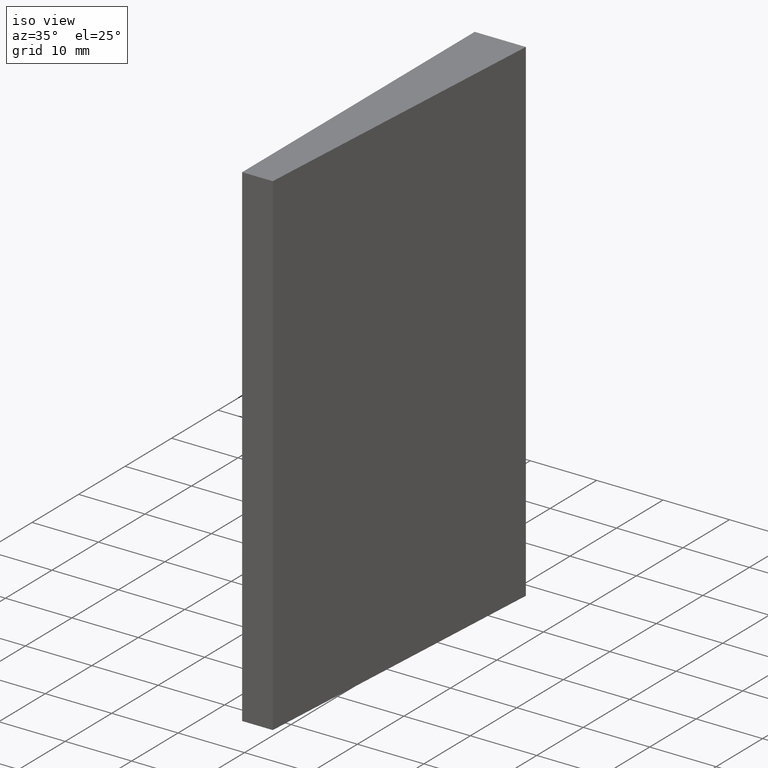
[diagram: clean part render]
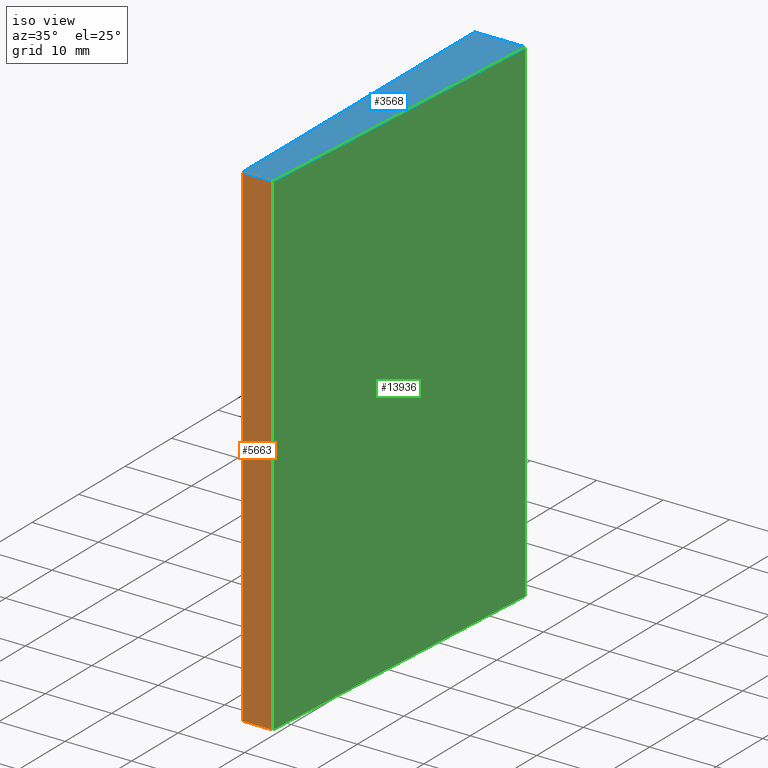
[diagram: same view with three faces highlighted in distinct colors, each labeled with its STEP entity id]
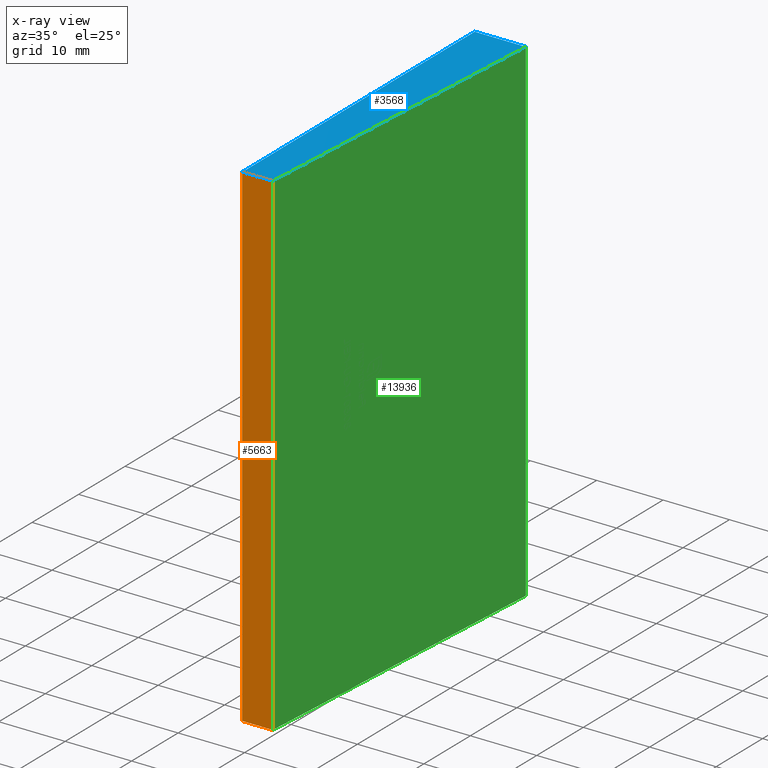
[diagram: x-ray of the same camera — body ghosted, the three highlighted faces saturated]
A machine part, iso view with three faces highlighted in distinct colors.
The next image is the same camera in x-ray (body ghosted, the three faces saturated) — at least one of them is partly hidden behind the body in this view.
Their STEP definitions:

[orange] entity #5663 — the highlighted planar face has unit normal (0, 1, -0).
#792 = DIRECTION ( 'NONE',  ( 0.000000000000000000, 0.000000000000000000, 1.000000000000000000 ) ) ;
#1117 = CARTESIAN_POINT ( 'NONE',  ( -3.849999999999992539, -25.00000000000000000, 37.35000000000000142 ) ) ;
#1541 = VERTEX_POINT ( 'NONE', #14502 ) ;
#1980 = CARTESIAN_POINT ( 'NONE',  ( -3.849999999999992539, -25.00000000000000000, 37.35000000000000142 ) ) ;
#2612 = FACE_OUTER_BOUND ( 'NONE', #4120, .T. ) ;
#3157 = EDGE_CURVE ( 'NONE', #10085, #9326, #4837, .T. ) ;
#3208 = DIRECTION ( 'NONE',  ( 0.000000000000000000, 1.000000000000000000, -0.000000000000000000 ) ) ;
#4119 = CARTESIAN_POINT ( 'NONE',  ( 0.7500000000000072164, -25.00000000000000000, -37.35000000000000142 ) ) ;
#4120 = EDGE_LOOP ( 'NONE', ( #5336, #14448, #8562, #8525 ) ) ;
#4466 = VECTOR ( 'NONE', #12809, 1000.000000000000000 ) ;
#4837 = LINE ( 'NONE', #4119, #4466 ) ;
#5336 = ORIENTED_EDGE ( 'NONE', *, *, #3157, .T. ) ;
#5550 = CARTESIAN_POINT ( 'NONE',  ( 0.7500000000000072164, -25.00000000000000000, 37.35000000000000142 ) ) ;
#5663 = ADVANCED_FACE ( 'NONE', ( #2612 ), #13007, .F. ) ;
#5723 = EDGE_CURVE ( 'NONE', #5782, #1541, #9683, .T. ) ;
#5782 = VERTEX_POINT ( 'NONE', #1117 ) ;
#6555 = EDGE_CURVE ( 'NONE', #5782, #10085, #15318, .T. ) ;
#6948 = CARTESIAN_POINT ( 'NONE',  ( 0.7500000000000072164, -25.00000000000000000, -37.35000000000000142 ) ) ;
#8525 = ORIENTED_EDGE ( 'NONE', *, *, #6555, .T. ) ;
#8562 = ORIENTED_EDGE ( 'NONE', *, *, #5723, .F. ) ;
#9009 = DIRECTION ( 'NONE',  ( -0.000000000000000000, -0.000000000000000000, -1.000000000000000000 ) ) ;
#9243 = CARTESIAN_POINT ( 'NONE',  ( 0.7500000000000072164, -25.00000000000000000, 37.35000000000000142 ) ) ;
#9326 = VERTEX_POINT ( 'NONE', #6948 ) ;
#9683 = LINE ( 'NONE', #9243, #14860 ) ;
#9796 = VECTOR ( 'NONE', #9009, 1000.000000000000000 ) ;
#10085 = VERTEX_POINT ( 'NONE', #10380 ) ;
#10380 = CARTESIAN_POINT ( 'NONE',  ( -3.849999999999992539, -25.00000000000000000, -37.35000000000000142 ) ) ;
#10723 = DIRECTION ( 'NONE',  ( -0.000000000000000000, -0.000000000000000000, -1.000000000000000000 ) ) ;
#12098 = AXIS2_PLACEMENT_3D ( 'NONE', #5550, #3208, #792 ) ;
#12559 = CARTESIAN_POINT ( 'NONE',  ( 0.7500000000000072164, -25.00000000000000000, 37.35000000000000142 ) ) ;
#12809 = DIRECTION ( 'NONE',  ( 1.000000000000000000, -0.000000000000000000, -0.000000000000000000 ) ) ;
#13007 = PLANE ( 'NONE',  #12098 ) ;
#13221 = VECTOR ( 'NONE', #10723, 1000.000000000000000 ) ;
#13265 = LINE ( 'NONE', #12559, #9796 ) ;
#14271 = DIRECTION ( 'NONE',  ( 1.000000000000000000, -0.000000000000000000, -0.000000000000000000 ) ) ;
#14448 = ORIENTED_EDGE ( 'NONE', *, *, #15852, .F. ) ;
#14502 = CARTESIAN_POINT ( 'NONE',  ( 0.7500000000000072164, -25.00000000000000000, 37.35000000000000142 ) ) ;
#14860 = VECTOR ( 'NONE', #14271, 1000.000000000000000 ) ;
#15318 = LINE ( 'NONE', #1980, #13221 ) ;
#15852 = EDGE_CURVE ( 'NONE', #1541, #9326, #13265, .T. ) ;

[blue] entity #3568 — the highlighted planar face has unit normal (0, 0, -1).
#322 = EDGE_CURVE ( 'NONE', #1541, #4600, #15030, .T. ) ;
#1117 = CARTESIAN_POINT ( 'NONE',  ( -3.849999999999992539, -25.00000000000000000, 37.35000000000000142 ) ) ;
#1541 = VERTEX_POINT ( 'NONE', #14502 ) ;
#2322 = ORIENTED_EDGE ( 'NONE', *, *, #322, .T. ) ;
#2856 = CARTESIAN_POINT ( 'NONE',  ( -3.850000000000002309, 25.00000000000000000, 37.35000000000000142 ) ) ;
#3489 = ORIENTED_EDGE ( 'NONE', *, *, #8858, .T. ) ;
#3568 = ADVANCED_FACE ( 'NONE', ( #14788 ), #13630, .F. ) ;
#3919 = DIRECTION ( 'NONE',  ( -1.000000000000000000, -0.000000000000000000, -0.000000000000000000 ) ) ;
#3931 = VERTEX_POINT ( 'NONE', #11254 ) ;
#3948 = EDGE_CURVE ( 'NONE', #4600, #3931, #11542, .T. ) ;
#4600 = VERTEX_POINT ( 'NONE', #6563 ) ;
#5723 = EDGE_CURVE ( 'NONE', #5782, #1541, #9683, .T. ) ;
#5782 = VERTEX_POINT ( 'NONE', #1117 ) ;
#6112 = LINE ( 'NONE', #12760, #8593 ) ;
#6563 = CARTESIAN_POINT ( 'NONE',  ( 3.849999999999997868, 25.00000000000000000, 37.35000000000000142 ) ) ;
#6651 = DIRECTION ( 'NONE',  ( 1.908195823574487804E-16, -1.000000000000000000, -0.000000000000000000 ) ) ;
#7525 = CARTESIAN_POINT ( 'NONE',  ( 0.000000000000000000, 0.000000000000000000, 37.35000000000000142 ) ) ;
#8328 = VECTOR ( 'NONE', #15549, 1000.000000000000227 ) ;
#8561 = EDGE_LOOP ( 'NONE', ( #11828, #2322, #12740, #3489 ) ) ;
#8593 = VECTOR ( 'NONE', #6651, 1000.000000000000000 ) ;
#8858 = EDGE_CURVE ( 'NONE', #3931, #5782, #6112, .T. ) ;
#8910 = DIRECTION ( 'NONE',  ( -1.000000000000000000, 0.000000000000000000, -0.000000000000000000 ) ) ;
#9243 = CARTESIAN_POINT ( 'NONE',  ( 0.7500000000000072164, -25.00000000000000000, 37.35000000000000142 ) ) ;
#9683 = LINE ( 'NONE', #9243, #14860 ) ;
#11143 = VECTOR ( 'NONE', #3919, 1000.000000000000000 ) ;
#11254 = CARTESIAN_POINT ( 'NONE',  ( -3.850000000000002309, 25.00000000000000000, 37.35000000000000142 ) ) ;
#11542 = LINE ( 'NONE', #2856, #11143 ) ;
#11828 = ORIENTED_EDGE ( 'NONE', *, *, #5723, .T. ) ;
#11984 = CARTESIAN_POINT ( 'NONE',  ( 3.849999999999997868, 25.00000000000000000, 37.35000000000000142 ) ) ;
#12575 = DIRECTION ( 'NONE',  ( 0.000000000000000000, 0.000000000000000000, -1.000000000000000000 ) ) ;
#12740 = ORIENTED_EDGE ( 'NONE', *, *, #3948, .T. ) ;
#12760 = CARTESIAN_POINT ( 'NONE',  ( -3.849999999999992539, -25.00000000000000000, 37.35000000000000142 ) ) ;
#13630 = PLANE ( 'NONE',  #14421 ) ;
#14271 = DIRECTION ( 'NONE',  ( 1.000000000000000000, -0.000000000000000000, -0.000000000000000000 ) ) ;
#14421 = AXIS2_PLACEMENT_3D ( 'NONE', #7525, #12575, #8910 ) ;
#14502 = CARTESIAN_POINT ( 'NONE',  ( 0.7500000000000072164, -25.00000000000000000, 37.35000000000000142 ) ) ;
#14788 = FACE_OUTER_BOUND ( 'NONE', #8561, .T. ) ;
#14860 = VECTOR ( 'NONE', #14271, 1000.000000000000000 ) ;
#15030 = LINE ( 'NONE', #11984, #8328 ) ;
#15549 = DIRECTION ( 'NONE',  ( 0.06188117845299602460, 0.9980835234354228369, -0.000000000000000000 ) ) ;

[green] entity #13936 — the highlighted planar face has unit normal (-0.9981, 0.0619, 0).
#322 = EDGE_CURVE ( 'NONE', #1541, #4600, #15030, .T. ) ;
#725 = CARTESIAN_POINT ( 'NONE',  ( 3.849999999999997868, 25.00000000000000000, -37.35000000000000142 ) ) ;
#746 = ORIENTED_EDGE ( 'NONE', *, *, #15852, .T. ) ;
#982 = VECTOR ( 'NONE', #11703, 1000.000000000000227 ) ;
#1541 = VERTEX_POINT ( 'NONE', #14502 ) ;
#2264 = ORIENTED_EDGE ( 'NONE', *, *, #4410, .F. ) ;
#4410 = EDGE_CURVE ( 'NONE', #4600, #10488, #5013, .T. ) ;
#4600 = VERTEX_POINT ( 'NONE', #6563 ) ;
#4708 = EDGE_CURVE ( 'NONE', #9326, #10488, #7301, .T. ) ;
#5013 = LINE ( 'NONE', #11932, #12501 ) ;
#5868 = CARTESIAN_POINT ( 'NONE',  ( 3.849999999999997868, 25.00000000000000000, 37.35000000000000142 ) ) ;
#6563 = CARTESIAN_POINT ( 'NONE',  ( 3.849999999999997868, 25.00000000000000000, 37.35000000000000142 ) ) ;
#6948 = CARTESIAN_POINT ( 'NONE',  ( 0.7500000000000072164, -25.00000000000000000, -37.35000000000000142 ) ) ;
#7301 = LINE ( 'NONE', #725, #982 ) ;
#8328 = VECTOR ( 'NONE', #15549, 1000.000000000000227 ) ;
#8690 = FACE_OUTER_BOUND ( 'NONE', #8906, .T. ) ;
#8906 = EDGE_LOOP ( 'NONE', ( #12637, #2264, #10907, #746 ) ) ;
#9009 = DIRECTION ( 'NONE',  ( -0.000000000000000000, -0.000000000000000000, -1.000000000000000000 ) ) ;
#9326 = VERTEX_POINT ( 'NONE', #6948 ) ;
#9796 = VECTOR ( 'NONE', #9009, 1000.000000000000000 ) ;
#10488 = VERTEX_POINT ( 'NONE', #10579 ) ;
#10579 = CARTESIAN_POINT ( 'NONE',  ( 3.849999999999997868, 25.00000000000000000, -37.35000000000000142 ) ) ;
#10907 = ORIENTED_EDGE ( 'NONE', *, *, #322, .F. ) ;
#11703 = DIRECTION ( 'NONE',  ( 0.06188117845299602460, 0.9980835234354228369, -0.000000000000000000 ) ) ;
#11932 = CARTESIAN_POINT ( 'NONE',  ( 3.849999999999997868, 25.00000000000000000, 37.35000000000000142 ) ) ;
#11984 = CARTESIAN_POINT ( 'NONE',  ( 3.849999999999997868, 25.00000000000000000, 37.35000000000000142 ) ) ;
#12083 = DIRECTION ( 'NONE',  ( -0.000000000000000000, -0.000000000000000000, -1.000000000000000000 ) ) ;
#12501 = VECTOR ( 'NONE', #12083, 1000.000000000000000 ) ;
#12559 = CARTESIAN_POINT ( 'NONE',  ( 0.7500000000000072164, -25.00000000000000000, 37.35000000000000142 ) ) ;
#12637 = ORIENTED_EDGE ( 'NONE', *, *, #4708, .T. ) ;
#13156 = AXIS2_PLACEMENT_3D ( 'NONE', #5868, #15694, #13308 ) ;
#13265 = LINE ( 'NONE', #12559, #9796 ) ;
#13308 = DIRECTION ( 'NONE',  ( -0.06188117845299601766, -0.9980835234354228369, 0.000000000000000000 ) ) ;
#13360 = PLANE ( 'NONE',  #13156 ) ;
#13936 = ADVANCED_FACE ( 'NONE', ( #8690 ), #13360, .F. ) ;
#14502 = CARTESIAN_POINT ( 'NONE',  ( 0.7500000000000072164, -25.00000000000000000, 37.35000000000000142 ) ) ;
#15030 = LINE ( 'NONE', #11984, #8328 ) ;
#15549 = DIRECTION ( 'NONE',  ( 0.06188117845299602460, 0.9980835234354228369, -0.000000000000000000 ) ) ;
#15694 = DIRECTION ( 'NONE',  ( -0.9980835234354229479, 0.06188117845299602460, 0.000000000000000000 ) ) ;
#15852 = EDGE_CURVE ( 'NONE', #1541, #9326, #13265, .T. ) ;